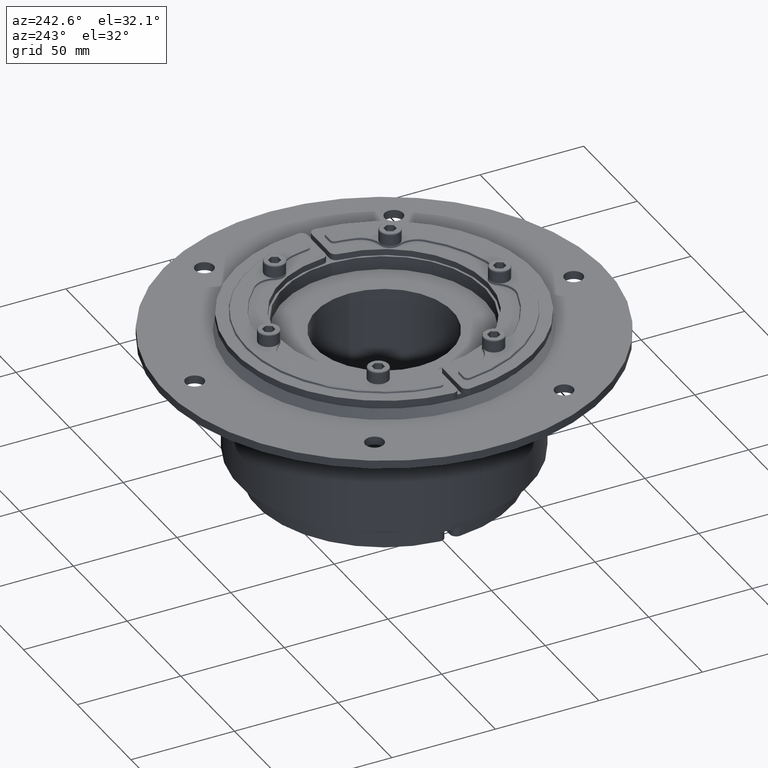
[diagram: clean part render]
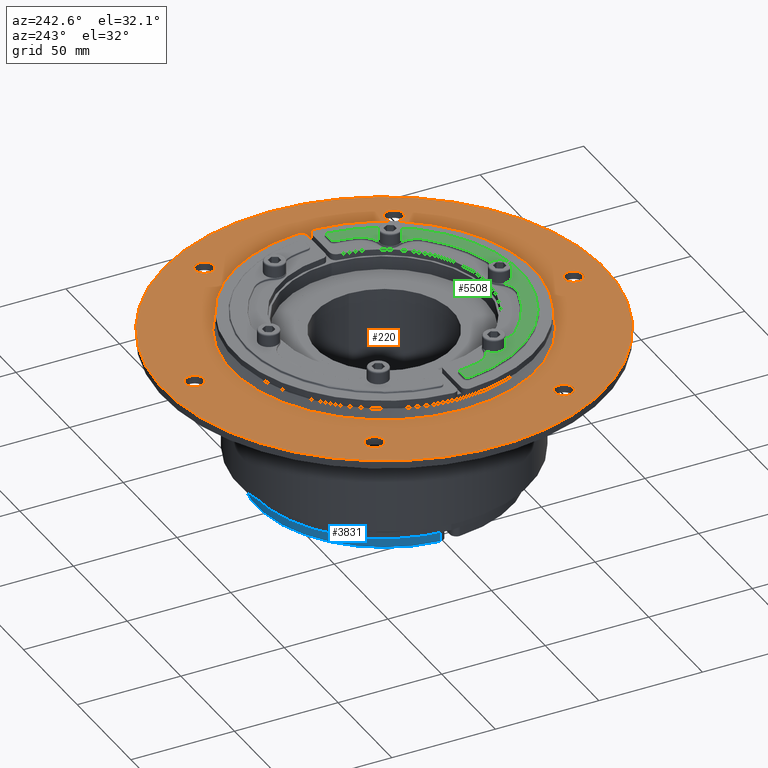
[diagram: same view with three faces highlighted in distinct colors, each labeled with its STEP entity id]
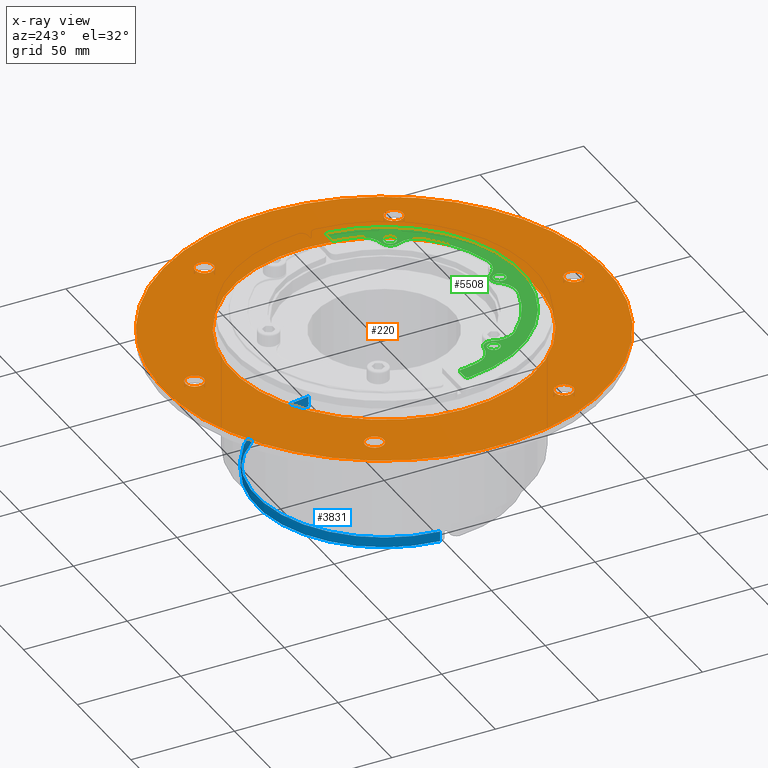
[diagram: x-ray of the same camera — body ghosted, the three highlighted faces saturated]
A machine part, auxiliary view with three faces highlighted in distinct colors.
The next image is the same camera in x-ray (body ghosted, the three faces saturated) — at least one of them is partly hidden behind the body in this view.
Their STEP definitions:

[orange] entity #220 — the highlighted planar face has unit normal (0, 0, 1).
#112=CARTESIAN_POINT('',(73.5,9.001154E-015,-6.000000000000002));
#113=VERTEX_POINT('',#112);
#114=CARTESIAN_POINT('',(0.0,0.0,-6.000000000000002));
#115=DIRECTION('',(0.0,0.0,1.0));
#116=DIRECTION('',(-1.0,0.0,0.0));
#117=AXIS2_PLACEMENT_3D('',#114,#115,#116);
#118=CIRCLE('',#117,73.5);
#119=EDGE_CURVE('',#113,#113,#118,.T.);
#135=CARTESIAN_POINT('',(-5.534716E-015,-2.223921E-015,-6.000000000000002));
#136=DIRECTION('',(0.0,0.0,1.0));
#137=DIRECTION('',(1.0,0.0,0.0));
#138=AXIS2_PLACEMENT_3D('',#135,#136,#137);
#139=PLANE('',#138);
#140=CARTESIAN_POINT('',(106.5,1.304249E-014,-6.000000000000001));
#141=VERTEX_POINT('',#140);
#142=CARTESIAN_POINT('',(0.0,0.0,-6.000000000000001));
#143=DIRECTION('',(0.0,0.0,1.0));
#144=DIRECTION('',(-1.0,0.0,0.0));
#145=AXIS2_PLACEMENT_3D('',#142,#143,#144);
#146=CIRCLE('',#145,106.5);
#147=EDGE_CURVE('',#141,#141,#146,.T.);
#148=ORIENTED_EDGE('',*,*,#147,.T.);
#149=EDGE_LOOP('',(#148));
#150=FACE_OUTER_BOUND('',#149,.T.);
#151=CARTESIAN_POINT('',(4.5,91.5,-6.000000000000002));
#152=VERTEX_POINT('',#151);
#153=CARTESIAN_POINT('',(0.0,91.5,-6.000000000000014));
#154=DIRECTION('',(0.0,0.0,-1.0));
#155=DIRECTION('',(1.0,0.0,0.0));
#156=AXIS2_PLACEMENT_3D('',#153,#154,#155);
#157=CIRCLE('',#156,4.5);
#158=EDGE_CURVE('',#152,#152,#157,.T.);
#159=ORIENTED_EDGE('',*,*,#158,.T.);
#160=EDGE_LOOP('',(#159));
#161=FACE_BOUND('',#160,.T.);
#162=CARTESIAN_POINT('',(-76.991324446276138,49.647114317029981,-6.000000000000002));
#163=VERTEX_POINT('',#162);
#164=CARTESIAN_POINT('',(-79.241324446276138,45.750000000000014,-6.000000000000014));
#165=DIRECTION('',(0.0,0.0,-1.0));
#166=DIRECTION('',(0.5,0.866025403784439,0.0));
#167=AXIS2_PLACEMENT_3D('',#164,#165,#166);
#168=CIRCLE('',#167,4.5);
#169=EDGE_CURVE('',#163,#163,#168,.T.);
#170=ORIENTED_EDGE('',*,*,#169,.T.);
#171=EDGE_LOOP('',(#170));
#172=FACE_BOUND('',#171,.T.);
#173=CARTESIAN_POINT('',(-81.491324446276138,-41.852885682970005,-6.000000000000002));
#174=VERTEX_POINT('',#173);
#175=CARTESIAN_POINT('',(-79.241324446276153,-45.749999999999972,-6.000000000000014));
#176=DIRECTION('',(0.0,0.0,-1.0));
#177=DIRECTION('',(-0.5,0.866025403784439,0.0));
#178=AXIS2_PLACEMENT_3D('',#175,#176,#177);
#179=CIRCLE('',#178,4.5);
#180=EDGE_CURVE('',#174,#174,#179,.T.);
#181=ORIENTED_EDGE('',*,*,#180,.T.);
#182=EDGE_LOOP('',(#181));
#183=FACE_BOUND('',#182,.T.);
#184=CARTESIAN_POINT('',(-4.500000000000011,-91.500000000000028,-6.000000000000002));
#185=VERTEX_POINT('',#184);
#186=CARTESIAN_POINT('',(-1.776357E-014,-91.500000000000028,-6.000000000000014));
#187=DIRECTION('',(0.0,0.0,-1.0));
#188=DIRECTION('',(-1.0,0.0,0.0));
#189=AXIS2_PLACEMENT_3D('',#186,#187,#188);
#190=CIRCLE('',#189,4.500000000000001);
#191=EDGE_CURVE('',#185,#185,#190,.T.);
#192=ORIENTED_EDGE('',*,*,#191,.T.);
#193=EDGE_LOOP('',(#192));
#194=FACE_BOUND('',#193,.T.);
#195=CARTESIAN_POINT('',(76.99132444627611,-49.647114317030017,-6.000000000000002));
#196=VERTEX_POINT('',#195);
#197=CARTESIAN_POINT('',(79.24132444627611,-45.750000000000036,-6.000000000000014));
#198=DIRECTION('',(0.0,0.0,-1.0));
#199=DIRECTION('',(-0.5,-0.866025403784438,0.0));
#200=AXIS2_PLACEMENT_3D('',#197,#198,#199);
#201=CIRCLE('',#200,4.5);
#202=EDGE_CURVE('',#196,#196,#201,.T.);
#203=ORIENTED_EDGE('',*,*,#202,.T.);
#204=EDGE_LOOP('',(#203));
#205=FACE_BOUND('',#204,.T.);
#206=CARTESIAN_POINT('',(81.491324446276181,41.852885682969969,-6.000000000000002));
#207=VERTEX_POINT('',#206);
#208=CARTESIAN_POINT('',(79.241324446276181,45.749999999999943,-6.000000000000014));
#209=DIRECTION('',(0.0,0.0,-1.0));
#210=DIRECTION('',(0.499999999999999,-0.866025403784439,0.0));
#211=AXIS2_PLACEMENT_3D('',#208,#209,#210);
#212=CIRCLE('',#211,4.5);
#213=EDGE_CURVE('',#207,#207,#212,.T.);
#214=ORIENTED_EDGE('',*,*,#213,.T.);
#215=EDGE_LOOP('',(#214));
#216=FACE_BOUND('',#215,.T.);
#217=ORIENTED_EDGE('',*,*,#119,.F.);
#218=EDGE_LOOP('',(#217));
#219=FACE_BOUND('',#218,.T.);
#220=ADVANCED_FACE('',(#150,#161,#172,#183,#194,#205,#216,#219),#139,.T.);

[blue] entity #3831 — the highlighted cylindrical surface (partial cylindrical patch) has radius 61.5 mm, axis along (-0, -0, 1).
#3764=CARTESIAN_POINT('',(126.08410001175687,59.256714821601769,0.0));
#3765=VERTEX_POINT('',#3764);
#3781=CARTESIAN_POINT('',(126.08410001175687,59.256714821601769,5.0));
#3782=VERTEX_POINT('',#3781);
#3790=CARTESIAN_POINT('',(126.08410001175687,59.256714821601769,0.0));
#3791=DIRECTION('',(0.0,0.0,1.0));
#3792=VECTOR('',#3791,5.0);
#3793=LINE('',#3790,#3792);
#3794=EDGE_CURVE('',#3765,#3782,#3793,.T.);
#3799=CARTESIAN_POINT('',(64.766322634513358,63.98748405237189,0.0));
#3800=DIRECTION('',(0.0,0.0,1.0));
#3801=DIRECTION('',(0.997037030524285,0.076923076923091,0.0));
#3802=AXIS2_PLACEMENT_3D('',#3799,#3800,#3801);
#3803=CYLINDRICAL_SURFACE('',#3802,61.499999999999993);
#3804=CARTESIAN_POINT('',(3.448545257269849,59.256714821601776,0.0));
#3805=VERTEX_POINT('',#3804);
#3806=CARTESIAN_POINT('',(64.766322634513358,63.98748405237189,0.0));
#3807=DIRECTION('',(0.0,0.0,-1.0));
#3808=DIRECTION('',(0.997037030524285,0.076923076923091,0.0));
#3809=AXIS2_PLACEMENT_3D('',#3806,#3807,#3808);
#3810=CIRCLE('',#3809,61.499999999999993);
#3811=EDGE_CURVE('',#3765,#3805,#3810,.T.);
#3812=ORIENTED_EDGE('',*,*,#3811,.F.);
#3813=ORIENTED_EDGE('',*,*,#3794,.T.);
#3814=CARTESIAN_POINT('',(3.448545257269853,59.256714821601776,5.0));
#3815=VERTEX_POINT('',#3814);
#3816=CARTESIAN_POINT('',(64.766322634513358,63.98748405237189,5.0));
#3817=DIRECTION('',(0.0,0.0,1.0));
#3818=DIRECTION('',(0.997037030524285,0.076923076923091,0.0));
#3819=AXIS2_PLACEMENT_3D('',#3816,#3817,#3818);
#3820=CIRCLE('',#3819,61.499999999999993);
#3821=EDGE_CURVE('',#3815,#3782,#3820,.T.);
#3822=ORIENTED_EDGE('',*,*,#3821,.F.);
#3823=CARTESIAN_POINT('',(3.448545257269849,59.256714821601776,0.0));
#3824=DIRECTION('',(0.0,0.0,1.0));
#3825=VECTOR('',#3824,5.0);
#3826=LINE('',#3823,#3825);
#3827=EDGE_CURVE('',#3805,#3815,#3826,.T.);
#3828=ORIENTED_EDGE('',*,*,#3827,.F.);
#3829=EDGE_LOOP('',(#3812,#3813,#3822,#3828));
#3830=FACE_OUTER_BOUND('',#3829,.T.);
#3831=ADVANCED_FACE('',(#3830),#3803,.T.);

[green] entity #5508 — the highlighted planar face has unit normal (-0, -0, 1).
#4935=CARTESIAN_POINT('',(-6.483697086676138,45.414238885601598,1.0));
#4936=VERTEX_POINT('',#4935);
#4945=CARTESIAN_POINT('',(-7.973622959536328,46.740685166592762,1.0));
#4946=VERTEX_POINT('',#4945);
#4954=CARTESIAN_POINT('',(-7.973622959536328,45.240685166592762,1.0));
#4955=DIRECTION('',(0.0,0.0,-1.0));
#4956=DIRECTION('',(0.664942674469301,0.746894396598082,0.0));
#4957=AXIS2_PLACEMENT_3D('',#4954,#4955,#4956);
#4958=CIRCLE('',#4957,1.499999999999999);
#4959=EDGE_CURVE('',#4946,#4936,#4958,.T.);
#4969=CARTESIAN_POINT('',(-11.998976024023126,46.740685166592677,1.0));
#4970=VERTEX_POINT('',#4969);
#4978=CARTESIAN_POINT('',(-11.998976024023122,46.740685166592677,1.0));
#4979=DIRECTION('',(1.0,0.0,0.0));
#4980=VECTOR('',#4979,4.025353064486794);
#4981=LINE('',#4978,#4980);
#4982=EDGE_CURVE('',#4970,#4946,#4981,.T.);
#4994=CARTESIAN_POINT('',(-13.490116255105086,45.077894468919652,1.0));
#4995=VERTEX_POINT('',#4994);
#5003=CARTESIAN_POINT('',(-11.998976024023136,45.240685166592669,1.0));
#5004=DIRECTION('',(0.0,0.0,-1.0));
#5005=DIRECTION('',(-0.744488795007021,0.6676349557273,0.0));
#5006=AXIS2_PLACEMENT_3D('',#5003,#5004,#5005);
#5007=CIRCLE('',#5006,1.5);
#5008=EDGE_CURVE('',#4995,#4970,#5007,.T.);
#5020=CARTESIAN_POINT('',(117.73022408009351,45.077894468920057,1.0));
#5021=VERTEX_POINT('',#5020);
#5029=CARTESIAN_POINT('',(52.1200539124942,52.240685166592762,1.0));
#5030=DIRECTION('',(0.0,0.0,-1.0));
#5031=DIRECTION('',(0.0,-1.0,0.0));
#5032=AXIS2_PLACEMENT_3D('',#5029,#5030,#5031);
#5033=CIRCLE('',#5032,66.000000000000014);
#5034=EDGE_CURVE('',#5021,#4995,#5033,.T.);
#5046=CARTESIAN_POINT('',(116.23908384901131,46.740685166592719,1.0));
#5047=VERTEX_POINT('',#5046);
#5055=CARTESIAN_POINT('',(116.23908384901131,45.240685166592726,1.0));
#5056=DIRECTION('',(0.0,0.0,-1.0));
#5057=DIRECTION('',(0.744488795007035,0.667634955727284,0.0));
#5058=AXIS2_PLACEMENT_3D('',#5055,#5056,#5057);
#5059=CIRCLE('',#5058,1.5);
#5060=EDGE_CURVE('',#5047,#5021,#5059,.T.);
#5072=CARTESIAN_POINT('',(112.2137307845245,46.740685166592755,1.0));
#5073=VERTEX_POINT('',#5072);
#5081=CARTESIAN_POINT('',(112.21373078452449,46.740685166592762,1.0));
#5082=DIRECTION('',(1.0,0.0,0.0));
#5083=VECTOR('',#5082,4.025353064486822);
#5084=LINE('',#5081,#5083);
#5085=EDGE_CURVE('',#5073,#5047,#5084,.T.);
#5097=CARTESIAN_POINT('',(110.7238049116643,45.414238885601598,1.0));
#5098=VERTEX_POINT('',#5097);
#5106=CARTESIAN_POINT('',(112.21373078452451,45.240685166592762,1.0));
#5107=DIRECTION('',(0.0,0.0,-1.0));
#5108=DIRECTION('',(-0.664942674469302,0.746894396598081,0.0));
#5109=AXIS2_PLACEMENT_3D('',#5106,#5107,#5108);
#5110=CIRCLE('',#5109,1.5);
#5111=EDGE_CURVE('',#5098,#5073,#5110,.T.);
#5123=CARTESIAN_POINT('',(108.97643761490272,36.481509036969271,1.0));
#5124=VERTEX_POINT('',#5123);
#5132=CARTESIAN_POINT('',(52.1200539124942,52.240685166592762,1.0));
#5133=DIRECTION('',(0.0,0.0,1.0));
#5134=DIRECTION('',(0.981399708043253,-0.191975553268163,0.0));
#5135=AXIS2_PLACEMENT_3D('',#5132,#5133,#5134);
#5136=CIRCLE('',#5135,58.999999999999993);
#5137=EDGE_CURVE('',#5124,#5098,#5136,.T.);
#5149=CARTESIAN_POINT('',(99.938057716706879,28.84181207021993,1.0));
#5150=VERTEX_POINT('',#5149);
#5158=CARTESIAN_POINT('',(98.857928650914687,39.286108178681758,1.0));
#5159=DIRECTION('',(0.0,0.0,1.0));
#5160=DIRECTION('',(0.645540191915444,-0.763726299548321,0.0));
#5161=AXIS2_PLACEMENT_3D('',#5158,#5159,#5160);
#5162=CIRCLE('',#5161,10.5);
#5163=EDGE_CURVE('',#5150,#5124,#5162,.T.);
#5175=CARTESIAN_POINT('',(96.293074335987669,22.528515662069992,1.0));
#5176=VERTEX_POINT('',#5175);
#5184=CARTESIAN_POINT('',(100.40097017347534,24.365685166593583,1.0));
#5185=DIRECTION('',(0.0,0.0,-1.0));
#5186=DIRECTION('',(-0.866025403784444,0.499999999999991,0.0));
#5187=AXIS2_PLACEMENT_3D('',#5184,#5185,#5186);
#5188=CIRCLE('',#5187,4.500000000000001);
#5189=EDGE_CURVE('',#5176,#5150,#5188,.T.);
#5201=CARTESIAN_POINT('',(94.196092634665547,10.881200577803085,1.0));
#5202=VERTEX_POINT('',#5201);
#5210=CARTESIAN_POINT('',(86.707984048516551,18.241786818181083,1.0));
#5211=DIRECTION('',(0.0,0.0,1.0));
#5212=DIRECTION('',(0.984176472904851,-0.177191055588502,0.0));
#5213=AXIS2_PLACEMENT_3D('',#5210,#5211,#5212);
#5214=CIRCLE('',#5213,10.500000000000002);
#5215=EDGE_CURVE('',#5202,#5176,#5214,.T.);
#5227=CARTESIAN_POINT('',(66.900398892728646,-4.877975551820953,1.0));
#5228=VERTEX_POINT('',#5227);
#5236=CARTESIAN_POINT('',(52.1200539124942,52.240685166592762,1.0));
#5237=DIRECTION('',(0.0,0.0,1.0));
#5238=DIRECTION('',(0.499999999999979,-0.866025403784451,0.0));
#5239=AXIS2_PLACEMENT_3D('',#5236,#5237,#5238);
#5240=CIRCLE('',#5239,58.999999999999993);
#5241=EDGE_CURVE('',#5228,#5202,#5240,.T.);
#5253=CARTESIAN_POINT('',(55.765037293213162,-0.870357434304081,1.0));
#5254=VERTEX_POINT('',#5253);
#5262=CARTESIAN_POINT('',(64.269998514891199,5.287209830269859,1.0));
#5263=DIRECTION('',(0.0,0.0,1.0));
#5264=DIRECTION('',(-0.338636280989423,-0.940917355136812,0.0));
#5265=AXIS2_PLACEMENT_3D('',#5262,#5263,#5264);
#5266=CIRCLE('',#5265,10.5);
#5267=EDGE_CURVE('',#5254,#5228,#5266,.T.);
#5279=CARTESIAN_POINT('',(48.475070531774833,-0.870357434304105,1.0));
#5280=VERTEX_POINT('',#5279);
#5288=CARTESIAN_POINT('',(52.120053912493979,-3.509314833407245,1.0));
#5289=DIRECTION('',(0.0,0.0,-1.0));
#5290=DIRECTION('',(0.0,1.0,0.0));
#5291=AXIS2_PLACEMENT_3D('',#5288,#5289,#5290);
#5292=CIRCLE('',#5291,4.5);
#5293=EDGE_CURVE('',#5280,#5254,#5292,.T.);
#5305=CARTESIAN_POINT('',(37.339708932259455,-4.87797555182096,1.0));
#5306=VERTEX_POINT('',#5305);
#5314=CARTESIAN_POINT('',(39.970109310096859,5.287209830269859,1.0));
#5315=DIRECTION('',(0.0,0.0,1.0));
#5316=DIRECTION('',(0.33863628098942,-0.940917355136813,0.0));
#5317=AXIS2_PLACEMENT_3D('',#5314,#5315,#5316);
#5318=CIRCLE('',#5317,10.5);
#5319=EDGE_CURVE('',#5306,#5280,#5318,.T.);
#5331=CARTESIAN_POINT('',(10.04401519032119,10.881200577804687,1.0));
#5332=VERTEX_POINT('',#5331);
#5340=CARTESIAN_POINT('',(52.1200539124942,52.240685166592762,1.0));
#5341=DIRECTION('',(0.0,0.0,1.0));
#5342=DIRECTION('',(-0.499999999999999,-0.866025403784439,0.0));
#5343=AXIS2_PLACEMENT_3D('',#5340,#5341,#5342);
#5344=CIRCLE('',#5343,59.0);
#5345=EDGE_CURVE('',#5332,#5306,#5344,.T.);
#5357=CARTESIAN_POINT('',(7.947033488998528,22.528515662069722,1.0));
#5358=VERTEX_POINT('',#5357);
#5366=CARTESIAN_POINT('',(17.532123776470257,18.241786818182447,1.0));
#5367=DIRECTION('',(0.0,0.0,1.0));
#5368=DIRECTION('',(-0.984176472904838,-0.177191055588574,0.0));
#5369=AXIS2_PLACEMENT_3D('',#5366,#5367,#5368);
#5370=CIRCLE('',#5369,10.5);
#5371=EDGE_CURVE('',#5358,#5332,#5370,.T.);
#5383=CARTESIAN_POINT('',(4.302050108279782,28.841812070218431,1.0));
#5384=VERTEX_POINT('',#5383);
#5392=CARTESIAN_POINT('',(3.839137651510328,24.365685166592073,1.0));
#5393=DIRECTION('',(0.0,0.0,-1.0));
#5394=DIRECTION('',(0.866025403784431,0.500000000000013,0.0));
#5395=AXIS2_PLACEMENT_3D('',#5392,#5393,#5394);
#5396=CIRCLE('',#5395,4.500000000000001);
#5397=EDGE_CURVE('',#5384,#5358,#5396,.T.);
#5409=CARTESIAN_POINT('',(-4.736329789913754,36.481509036966848,1.0));
#5410=VERTEX_POINT('',#5409);
#5418=CARTESIAN_POINT('',(5.382179174074055,39.286108178680053,1.0));
#5419=DIRECTION('',(0.0,0.0,1.0));
#5420=DIRECTION('',(-0.64554019191549,-0.763726299548282,0.0));
#5421=AXIS2_PLACEMENT_3D('',#5418,#5419,#5420);
#5422=CIRCLE('',#5421,10.500000000000004);
#5423=EDGE_CURVE('',#5410,#5384,#5422,.T.);
#5436=CARTESIAN_POINT('',(52.1200539124942,52.240685166592762,1.0));
#5437=DIRECTION('',(0.0,0.0,1.0));
#5438=DIRECTION('',(-0.981399708043249,-0.191975553268183,0.0));
#5439=AXIS2_PLACEMENT_3D('',#5436,#5437,#5438);
#5440=CIRCLE('',#5439,59.000000000000007);
#5441=EDGE_CURVE('',#4936,#5410,#5440,.T.);
#5448=CARTESIAN_POINT('',(52.120053912494335,12.334365325278601,1.0));
#5449=DIRECTION('',(0.0,0.0,1.0));
#5450=DIRECTION('',(1.0,0.0,0.0));
#5451=AXIS2_PLACEMENT_3D('',#5448,#5449,#5450);
#5452=PLANE('',#5451);
#5453=ORIENTED_EDGE('',*,*,#4959,.F.);
#5454=ORIENTED_EDGE('',*,*,#4982,.F.);
#5455=ORIENTED_EDGE('',*,*,#5008,.F.);
#5456=ORIENTED_EDGE('',*,*,#5034,.F.);
#5457=ORIENTED_EDGE('',*,*,#5060,.F.);
#5458=ORIENTED_EDGE('',*,*,#5085,.F.);
#5459=ORIENTED_EDGE('',*,*,#5111,.F.);
#5460=ORIENTED_EDGE('',*,*,#5137,.F.);
#5461=ORIENTED_EDGE('',*,*,#5163,.F.);
#5462=ORIENTED_EDGE('',*,*,#5189,.F.);
#5463=ORIENTED_EDGE('',*,*,#5215,.F.);
#5464=ORIENTED_EDGE('',*,*,#5241,.F.);
#5465=ORIENTED_EDGE('',*,*,#5267,.F.);
#5466=ORIENTED_EDGE('',*,*,#5293,.F.);
#5467=ORIENTED_EDGE('',*,*,#5319,.F.);
#5468=ORIENTED_EDGE('',*,*,#5345,.F.);
#5469=ORIENTED_EDGE('',*,*,#5371,.F.);
#5470=ORIENTED_EDGE('',*,*,#5397,.F.);
#5471=ORIENTED_EDGE('',*,*,#5423,.F.);
#5472=ORIENTED_EDGE('',*,*,#5441,.F.);
#5473=EDGE_LOOP('',(#5453,#5454,#5455,#5456,#5457,#5458,#5459,#5460,#5461,#5462,#5463,#5464,#5465,#5466,#5467,#5468,#5469,#5470,#5471,#5472));
#5474=FACE_OUTER_BOUND('',#5473,.T.);
#5475=CARTESIAN_POINT('',(103.40097017347534,24.365685166593583,1.0));
#5476=VERTEX_POINT('',#5475);
#5477=CARTESIAN_POINT('',(100.40097017347534,24.365685166593583,1.0));
#5478=DIRECTION('',(0.0,0.0,-1.0));
#5479=DIRECTION('',(-1.0,0.0,0.0));
#5480=AXIS2_PLACEMENT_3D('',#5477,#5478,#5479);
#5481=CIRCLE('',#5480,3.0);
#5482=EDGE_CURVE('',#5476,#5476,#5481,.T.);
#5483=ORIENTED_EDGE('',*,*,#5482,.T.);
#5484=EDGE_LOOP('',(#5483));
#5485=FACE_BOUND('',#5484,.T.);
#5486=CARTESIAN_POINT('',(55.120053912493972,-3.509314833407245,1.0));
#5487=VERTEX_POINT('',#5486);
#5488=CARTESIAN_POINT('',(52.120053912493979,-3.509314833407245,1.0));
#5489=DIRECTION('',(0.0,0.0,-1.0));
#5490=DIRECTION('',(-1.0,0.0,0.0));
#5491=AXIS2_PLACEMENT_3D('',#5488,#5489,#5490);
#5492=CIRCLE('',#5491,3.0);
#5493=EDGE_CURVE('',#5487,#5487,#5492,.T.);
#5494=ORIENTED_EDGE('',*,*,#5493,.T.);
#5495=EDGE_LOOP('',(#5494));
#5496=FACE_BOUND('',#5495,.T.);
#5497=CARTESIAN_POINT('',(6.839137651510328,24.365685166592073,1.0));
#5498=VERTEX_POINT('',#5497);
#5499=CARTESIAN_POINT('',(3.839137651510328,24.365685166592073,1.0));
#5500=DIRECTION('',(0.0,0.0,-1.0));
#5501=DIRECTION('',(-1.0,0.0,0.0));
#5502=AXIS2_PLACEMENT_3D('',#5499,#5500,#5501);
#5503=CIRCLE('',#5502,3.0);
#5504=EDGE_CURVE('',#5498,#5498,#5503,.T.);
#5505=ORIENTED_EDGE('',*,*,#5504,.T.);
#5506=EDGE_LOOP('',(#5505));
#5507=FACE_BOUND('',#5506,.T.);
#5508=ADVANCED_FACE('',(#5474,#5485,#5496,#5507),#5452,.T.);